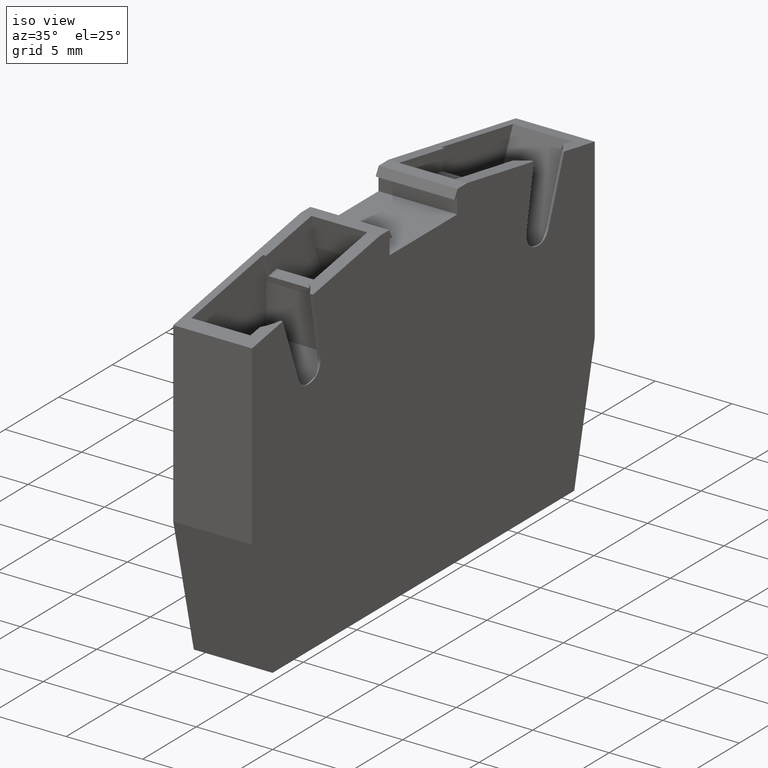
[diagram: clean part render]
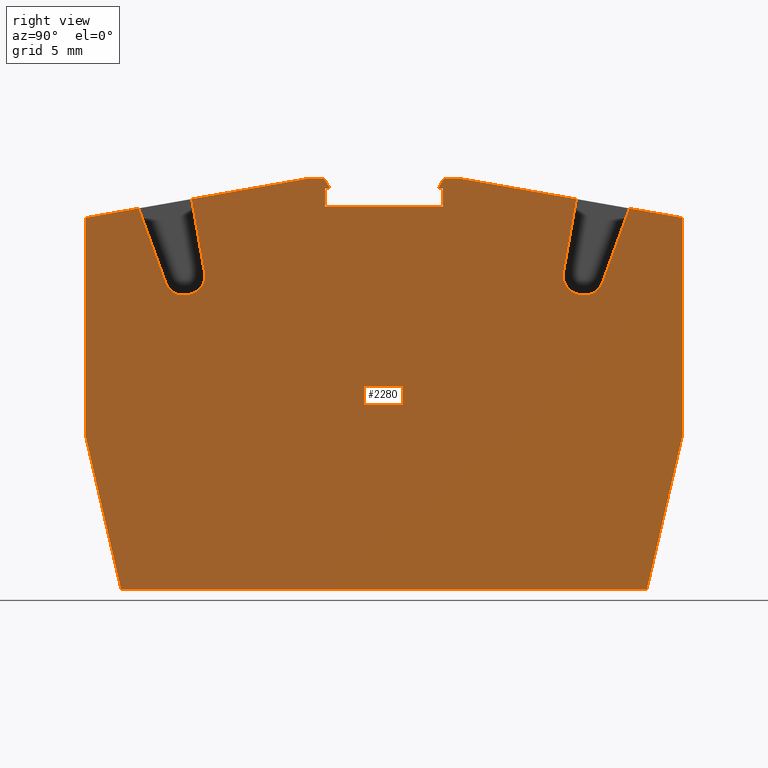
[diagram: tour spotlight — one face highlighted and labeled with its STEP entity id]
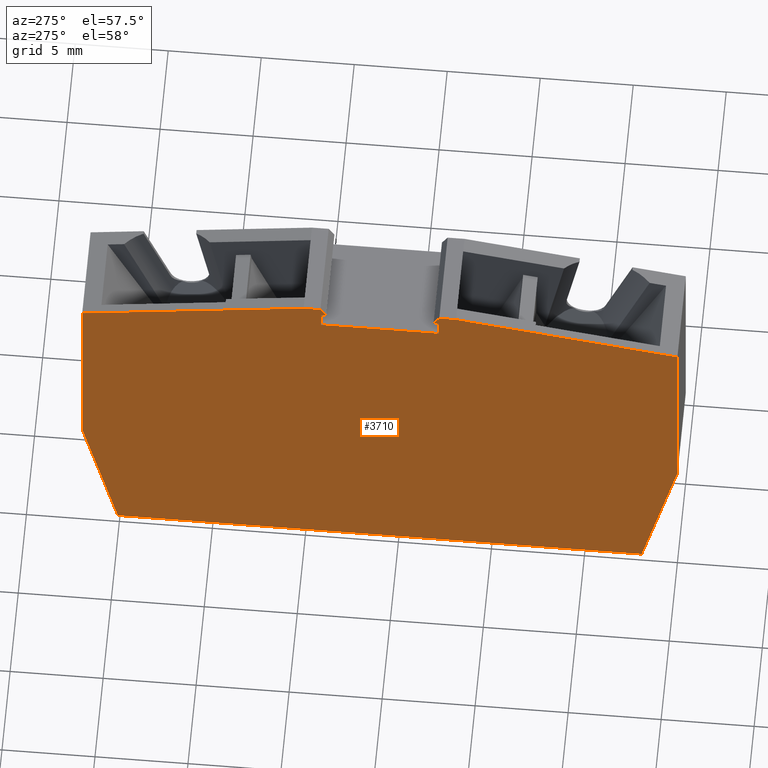
[diagram: tour spotlight — one face highlighted and labeled with its STEP entity id]
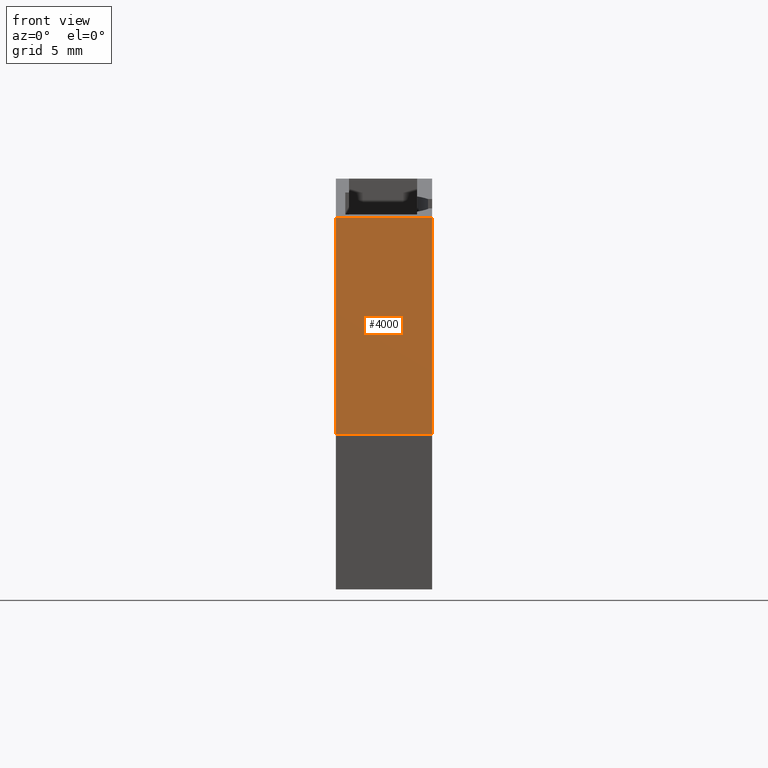
[diagram: tour spotlight — one face highlighted and labeled with its STEP entity id]
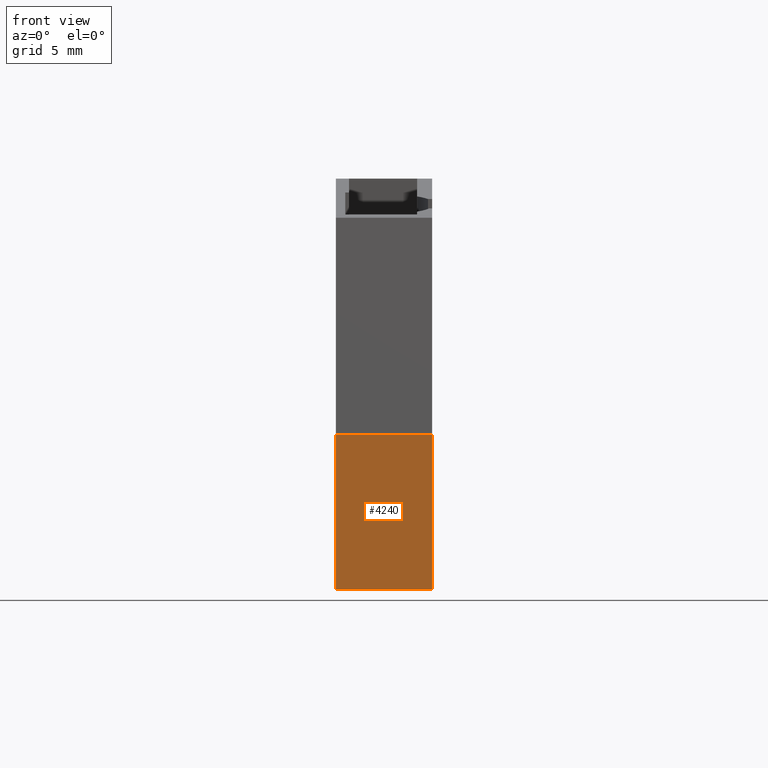
[diagram: tour spotlight — one face highlighted and labeled with its STEP entity id]
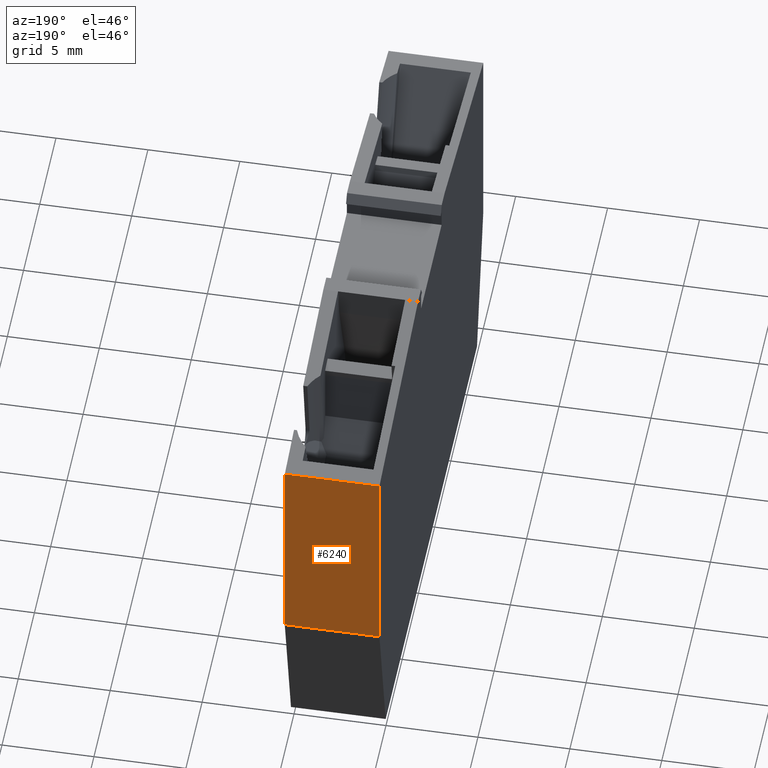
[diagram: tour spotlight — one face highlighted and labeled with its STEP entity id]
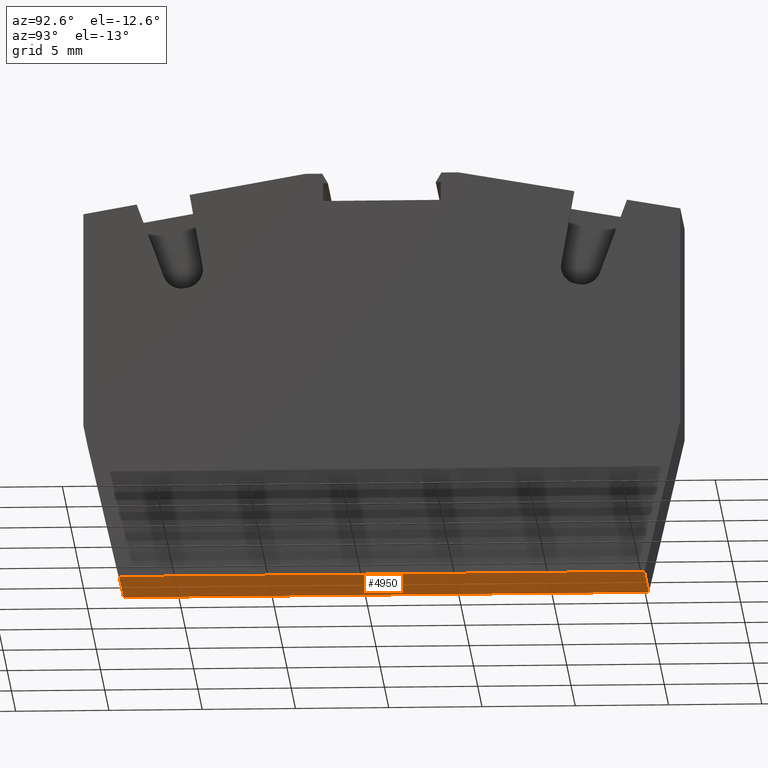
[diagram: tour spotlight — one face highlighted and labeled with its STEP entity id]
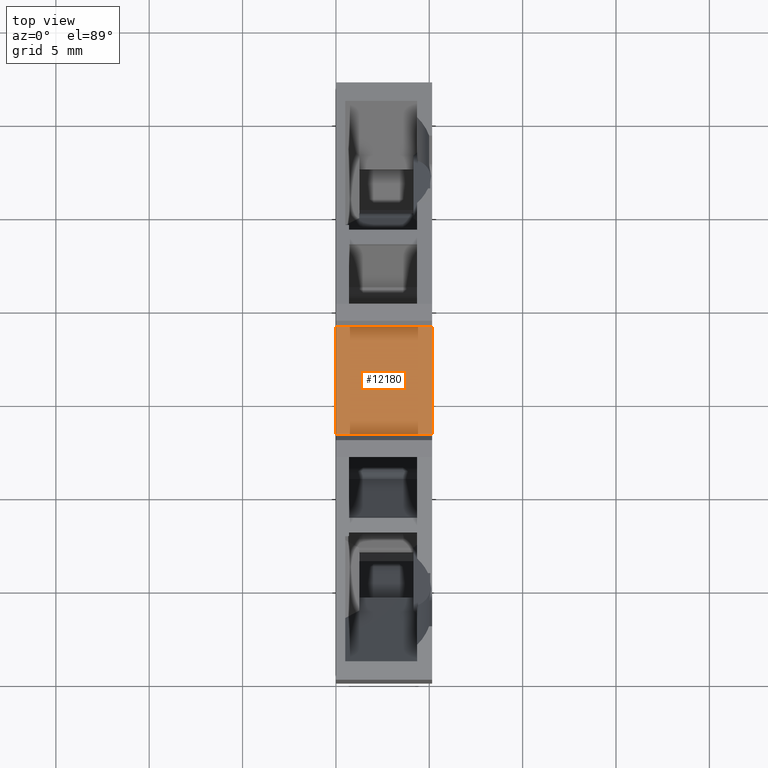
[diagram: tour spotlight — one face highlighted and labeled with its STEP entity id]
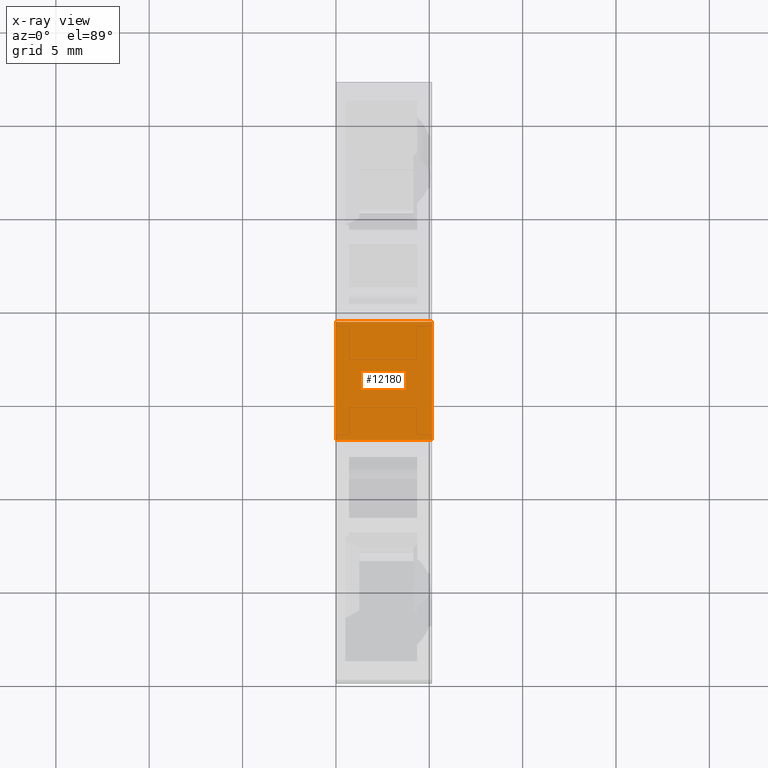
[diagram: x-ray of the same camera — body ghosted, this tour face saturated]
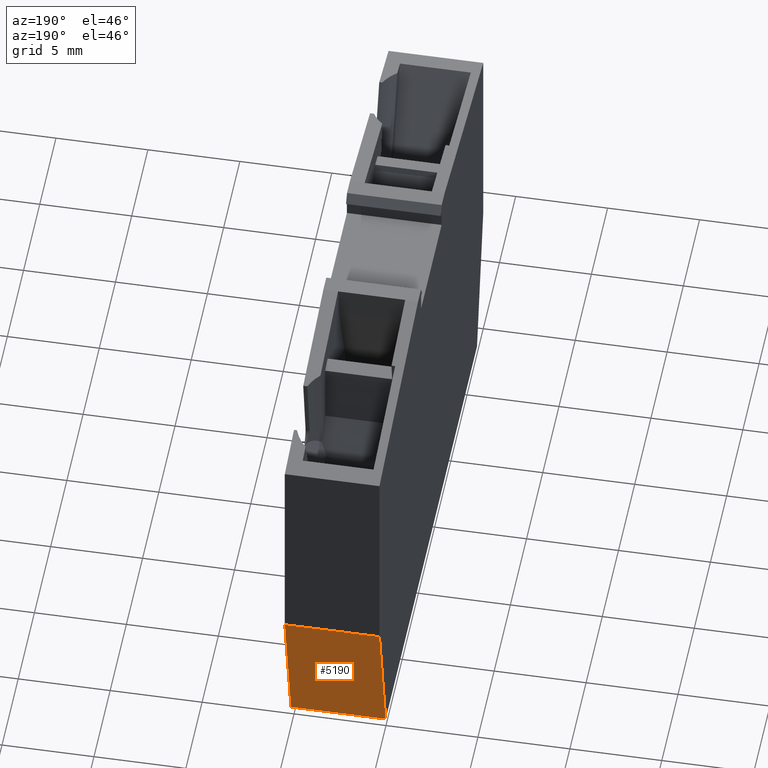
[diagram: tour spotlight — one face highlighted and labeled with its STEP entity id]
A machine part: a face-by-face anatomy tour. The part has 92 B-rep faces; the first image is the clean iso view, then the 8 largest visible faces are spotlighted one at a time (largest first), each with its STEP entity span.

Face 1 — right view, entity #2280. In plain terms, the highlighted planar face has unit normal (1, 0, -0).
Definition (entity closure, byte-faithful):
#10=CARTESIAN_POINT('',(8.03621504403304,131.836927118989,55.05));
#20=DIRECTION('',(0.,0.,-1.));
#30=DIRECTION('',(-1.,0.,0.));
#40=AXIS2_PLACEMENT_3D('',#10,#20,#30);
#50=PLANE('',#40);
#60=CARTESIAN_POINT('',(30.7687890493707,130.762530668222,
55.0499999999997));
#70=DIRECTION('',(0.999390827019096,0.0348994967024971,
-3.97549769558052E-15));
#80=VECTOR('',#70,1.);
#90=LINE('',#60,#80);
#100=CARTESIAN_POINT('',(0.0190285645131063,129.688725370403,55.05));
#110=VERTEX_POINT('',#100);
#120=CARTESIAN_POINT('',(8.53216352631757,129.986010594057,
55.0499999999999));
#130=VERTEX_POINT('',#120);
#140=EDGE_CURVE('',#110,#130,#90,.T.);
#150=ORIENTED_EDGE('',*,*,#140,.T.);
#160=CARTESIAN_POINT('',(30.7687890493707,137.928098859771,
55.0499999999997));
#170=DIRECTION('',(0.965925826289069,0.258819045102517,
-4.08006961549746E-15));
#180=VECTOR('',#170,1.);
#190=LINE('',#160,#180);
#200=CARTESIAN_POINT('',(-11.1873617196461,126.685982143695,
55.0500000000001));
#210=VERTEX_POINT('',#200);
#220=EDGE_CURVE('',#210,#110,#190,.T.);
#230=ORIENTED_EDGE('',*,*,#220,.T.);
#240=CARTESIAN_POINT('',(-6.72796270864261,75.7148182090404,55.05));
#250=DIRECTION('',(-0.0871557427476545,0.996194698091746,
-7.0849665348537E-16));
#260=VECTOR('',#250,1.);
#270=LINE('',#240,#260);
#280=CARTESIAN_POINT('',(-10.934440828583,123.795083130382,
55.0500000000001));
#290=VERTEX_POINT('',#280);
#300=EDGE_CURVE('',#290,#210,#270,.T.);
#310=ORIENTED_EDGE('',*,*,#300,.T.);
#320=CARTESIAN_POINT('',(30.7687890493707,120.146523283646,
55.0499999999998));
#330=DIRECTION('',(0.996194698091746,-0.0871557427476572,
-3.83401130997576E-15));
#340=VECTOR('',#330,1.);
#350=LINE('',#320,#340);
#360=CARTESIAN_POINT('',(-6.71253439702333,123.425714179154,55.05));
#370=VERTEX_POINT('',#360);
#380=EDGE_CURVE('',#290,#370,#350,.T.);
#390=ORIENTED_EDGE('',*,*,#380,.F.);
#400=CARTESIAN_POINT('',(-6.79969013977097,122.429519481062,
55.0499999999999));
#410=DIRECTION('',(1.26217744835362E-29,-1.57772181044202E-30,-1.));
#420=DIRECTION('',(-1.,-8.88178419700117E-16,-1.26217744835362E-29));
#430=AXIS2_PLACEMENT_3D('',#400,#410,#420);
#440=CIRCLE('',#430,1.);
#450=CARTESIAN_POINT('',(-5.80349544167923,122.51667522381,55.05));
#460=VERTEX_POINT('',#450);
#470=EDGE_CURVE('',#370,#460,#440,.T.);
#480=ORIENTED_EDGE('',*,*,#470,.F.);
#490=CARTESIAN_POINT('',(-1.70886352092564,75.7148182090403,
55.0499999999999));
#500=DIRECTION('',(0.0871557427476592,-0.996194698091745,
7.08496653485351E-16));
#510=VECTOR('',#500,1.);
#520=LINE('',#490,#510);
#530=CARTESIAN_POINT('',(-5.78947205052613,122.356387129467,55.05));
#540=VERTEX_POINT('',#530);
#550=EDGE_CURVE('',#460,#540,#520,.T.);
#560=ORIENTED_EDGE('',*,*,#550,.F.);
#570=CARTESIAN_POINT('',(-6.78566674861786,122.26923138672,
55.0499999999999));
#580=DIRECTION('',(1.26217744835362E-29,-1.57772181044202E-30,-1.));
#590=DIRECTION('',(-1.,-8.88178419700117E-16,-1.26217744835362E-29));
#600=AXIS2_PLACEMENT_3D('',#570,#580,#590);
#610=CIRCLE('',#600,1.);
#620=CARTESIAN_POINT('',(-6.69851100587022,121.273036688628,55.05));
#630=VERTEX_POINT('',#620);
#640=EDGE_CURVE('',#540,#630,#610,.T.);
#650=ORIENTED_EDGE('',*,*,#640,.F.);
#660=CARTESIAN_POINT('',(30.7687890493707,124.551000696386,
55.0499999999997));
#670=DIRECTION('',(0.996194698091746,0.0871557427476591,
-4.01808419017143E-15));
#680=VECTOR('',#670,1.);
#690=LINE('',#660,#680);
#700=CARTESIAN_POINT('',(-10.6832897982372,120.924413717637,55.05));
#710=VERTEX_POINT('',#700);
#720=EDGE_CURVE('',#710,#630,#690,.T.);
#730=ORIENTED_EDGE('',*,*,#720,.T.);
#740=CARTESIAN_POINT('',(-10.134208618927,114.64838711966,55.05));
#750=VERTEX_POINT('',#740);
#760=EDGE_CURVE('',#750,#710,#270,.T.);
#770=ORIENTED_EDGE('',*,*,#760,.T.);
#780=CARTESIAN_POINT('',(0.298009729134699,75.7148182090403,
55.0499999999999));
#790=DIRECTION('',(-0.258819045102517,0.965925826289069,
-2.44546880618514E-29));
#800=VECTOR('',#790,1.);
#810=LINE('',#780,#800);
#820=CARTESIAN_POINT('',(-9.90028486570806,113.775371787549,55.05));
#830=VERTEX_POINT('',#820);
#840=EDGE_CURVE('',#830,#750,#810,.T.);
#850=ORIENTED_EDGE('',*,*,#840,.T.);
#860=CARTESIAN_POINT('',(30.7687890493706,102.878126275403,
55.0499999999998));
#870=DIRECTION('',(0.965925826290971,-0.258819045095419,
-3.5334439362448E-15));
#880=VECTOR('',#870,1.);
#890=LINE('',#860,#880);
#900=CARTESIAN_POINT('',(-9.30914667773161,113.61697678747,55.05));
#910=VERTEX_POINT('',#900);
#920=EDGE_CURVE('',#830,#910,#890,.T.);
#930=ORIENTED_EDGE('',*,*,#920,.F.);
#940=CARTESIAN_POINT('',(0.846706104788934,75.7148182090403,
55.0499999999999));
#950=DIRECTION('',(-0.258819045103326,0.965925826288852,
3.39367961426079E-27));
#960=VECTOR('',#950,1.);
#970=LINE('',#940,#960);
#980=CARTESIAN_POINT('',(-9.3796250762075,113.880005751418,55.05));
#990=VERTEX_POINT('',#980);
#1000=EDGE_CURVE('',#910,#990,#970,.T.);
#1010=ORIENTED_EDGE('',*,*,#1000,.F.);
#1020=CARTESIAN_POINT('',(30.7687890493707,124.637740893771,
55.0499999999997));
#1030=DIRECTION('',(0.96592582628898,0.25881904510285,
-4.08006961549746E-15));
#1040=VECTOR('',#1030,1.);
#1050=LINE('',#1020,#1040);
#1060=CARTESIAN_POINT('',(-8.44267702470802,114.131060225167,55.05));
#1070=VERTEX_POINT('',#1060);
#1080=EDGE_CURVE('',#990,#1070,#1050,.T.);
#1090=ORIENTED_EDGE('',*,*,#1080,.F.);
#1100=CARTESIAN_POINT('',(22.1386483939725,-2.33276856728253E-12,
55.0499999999995));
#1110=DIRECTION('',(0.258819045102825,-0.965925826288987,
-4.08006961550003E-15));
#1120=VECTOR('',#1110,1.);
#1130=LINE('',#1100,#1120);
#1140=CARTESIAN_POINT('',(-6.80564656443251,108.021579373889,55.05));
#1150=VERTEX_POINT('',#1140);
#1160=EDGE_CURVE('',#1070,#1150,#1130,.T.);
#1170=ORIENTED_EDGE('',*,*,#1160,.F.);
#1180=CARTESIAN_POINT('',(30.7687890493706,118.089619052631,
55.0499999999998));
#1190=DIRECTION('',(-0.965925826289268,-0.258819045101776,
4.08006961549746E-15));
#1200=VECTOR('',#1190,1.);
#1210=LINE('',#1180,#1200);
#1220=CARTESIAN_POINT('',(-7.74259461593548,107.770524900139,55.05));
#1230=VERTEX_POINT('',#1220);
#1240=EDGE_CURVE('',#1150,#1230,#1210,.T.);
#1250=ORIENTED_EDGE('',*,*,#1240,.F.);
#1260=CARTESIAN_POINT('',(0.84670610471001,75.7148182090403,
55.0499999999999));
#1270=DIRECTION('',(-0.2588190451013,0.965925826289396,
-5.16782779010285E-27));
#1280=VECTOR('',#1270,1.);
#1290=LINE('',#1260,#1280);
#1300=CARTESIAN_POINT('',(-7.81307301441082,108.033553864087,55.05));
#1310=VERTEX_POINT('',#1300);
#1320=EDGE_CURVE('',#1230,#1310,#1290,.T.);
#1330=ORIENTED_EDGE('',*,*,#1320,.F.);
#1340=CARTESIAN_POINT('',(30.7687890493707,146.615415927268,
55.0499999999997));
#1350=DIRECTION('',(-0.70710678119205,-0.707106781181045,
3.53344393624568E-15));
#1360=VECTOR('',#1350,1.);
#1370=LINE('',#1340,#1360);
#1380=CARTESIAN_POINT('',(-8.24581620230524,107.600810676199,55.05));
#1390=VERTEX_POINT('',#1380);
#1400=EDGE_CURVE('',#1310,#1390,#1370,.T.);
#1410=ORIENTED_EDGE('',*,*,#1400,.F.);
#1420=CARTESIAN_POINT('',(0.298009729134681,75.7148182090403,
55.0499999999999));
#1430=DIRECTION('',(0.258819045102517,-0.965925826289069,
2.44546880618514E-29));
#1440=VECTOR('',#1430,1.);
#1450=LINE('',#1420,#1440);
#1460=CARTESIAN_POINT('',(-8.01189244908626,106.727795344089,55.05));
#1470=VERTEX_POINT('',#1460);
#1480=EDGE_CURVE('',#1390,#1470,#1450,.T.);
#1490=ORIENTED_EDGE('',*,*,#1480,.F.);
#1500=CARTESIAN_POINT('',(6.44969629117246,75.7148182090403,
55.0499999999999));
#1510=DIRECTION('',(0.422618261740696,-0.906307787036652,
-7.08496653485321E-16));
#1520=VECTOR('',#1510,1.);
#1530=LINE('',#1500,#1520);
#1540=CARTESIAN_POINT('',(-5.3493974001175,101.018056285753,55.05));
#1550=VERTEX_POINT('',#1540);
#1560=EDGE_CURVE('',#1470,#1550,#1530,.T.);
#1570=ORIENTED_EDGE('',*,*,#1560,.F.);
#1580=CARTESIAN_POINT('',(30.7687890493706,117.860243225818,
55.0499999999998));
#1590=DIRECTION('',(0.906307787036657,0.422618261740684,
-4.01808419017145E-15));
#1600=VECTOR('',#1590,1.);
#1610=LINE('',#1580,#1600);
#1620=CARTESIAN_POINT('',(-1.72416625197179,102.708529332715,
55.0499999999999));
#1630=VERTEX_POINT('',#1620);
#1640=EDGE_CURVE('',#1550,#1630,#1610,.T.);
#1650=ORIENTED_EDGE('',*,*,#1640,.F.);
#1660=CARTESIAN_POINT('',(-1.3015479902311,101.802221545678,
55.0499999999999));
#1670=DIRECTION('',(-2.83989925879564E-29,6.9419759659449E-29,1.));
#1680=DIRECTION('',(-0.866025403784447,-0.499999999999986,
7.88860905221012E-30));
#1690=AXIS2_PLACEMENT_3D('',#1660,#1670,#1680);
#1700=CIRCLE('',#1690,1.);
#1710=CARTESIAN_POINT('',(-0.395240203194459,102.224839807419,
55.0499999999999));
#1720=VERTEX_POINT('',#1710);
#1730=EDGE_CURVE('',#1720,#1630,#1700,.T.);
#1740=ORIENTED_EDGE('',*,*,#1730,.T.);
#1750=CARTESIAN_POINT('',(11.9665858859833,75.7148182090403,
55.0499999999999));
#1760=DIRECTION('',(-0.422618261740684,0.906307787036657,
7.08496653485271E-16));
#1770=VECTOR('',#1760,1.);
#1780=LINE('',#1750,#1770);
#1790=CARTESIAN_POINT('',(-0.327240769009165,102.079014550218,
55.0499999999999));
#1800=VERTEX_POINT('',#1790);
#1810=EDGE_CURVE('',#1800,#1720,#1780,.T.);
#1820=ORIENTED_EDGE('',*,*,#1810,.T.);
#1830=CARTESIAN_POINT('',(-1.23354855604579,101.656396288477,
55.0499999999999));
#1840=DIRECTION('',(-2.83989925879564E-29,6.9419759659449E-29,1.));
#1850=DIRECTION('',(-0.866025403784447,-0.499999999999986,
7.88860905221012E-30));
#1860=AXIS2_PLACEMENT_3D('',#1830,#1840,#1850);
#1870=CIRCLE('',#1860,1.);
#1880=CARTESIAN_POINT('',(-0.659972119694764,100.837244244188,
55.0499999999999));
#1890=VERTEX_POINT('',#1880);
#1900=EDGE_CURVE('',#1890,#1800,#1870,.T.);
#1910=ORIENTED_EDGE('',*,*,#1900,.T.);
#1920=CARTESIAN_POINT('',(30.7687890493707,122.843899731359,
55.0499999999998));
#1930=DIRECTION('',(0.819152044289001,0.573576436351033,
-3.83401130997579E-15));
#1940=VECTOR('',#1930,1.);
#1950=LINE('',#1920,#1940);
#1960=CARTESIAN_POINT('',(-4.13156586621116,98.4064081332756,55.05));
#1970=VERTEX_POINT('',#1960);
#1980=EDGE_CURVE('',#1970,#1890,#1950,.T.);
#1990=ORIENTED_EDGE('',*,*,#1980,.T.);
#2000=CARTESIAN_POINT('',(-2.90515227636565,95.7763557024449,
55.0499999999999));
#2010=VERTEX_POINT('',#2000);
#2020=EDGE_CURVE('',#1970,#2010,#1530,.T.);
#2030=ORIENTED_EDGE('',*,*,#2020,.F.);
#2040=CARTESIAN_POINT('',(30.7687890493706,104.799261086649,
55.0499999999998));
#2050=DIRECTION('',(0.965925826289069,0.258819045102517,
-4.08006961549746E-15));
#2060=VECTOR('',#2050,1.);
#2070=LINE('',#2040,#2060);
#2080=CARTESIAN_POINT('',(8.30123800779428,98.7790989291535,
55.0499999999998));
#2090=VERTEX_POINT('',#2080);
#2100=EDGE_CURVE('',#2010,#2090,#2070,.T.);
#2110=ORIENTED_EDGE('',*,*,#2100,.F.);
#2120=CARTESIAN_POINT('',(30.7687890493706,110.725307724295,
55.0499999999998));
#2130=DIRECTION('',(-0.882947592858929,-0.469471562785888,
3.97549769558053E-15));
#2140=VECTOR('',#2130,1.);
#2150=LINE('',#2120,#2140);
#2160=CARTESIAN_POINT('',(15.8224717623885,102.778209854202,
55.0499999999998));
#2170=VERTEX_POINT('',#2160);
#2180=EDGE_CURVE('',#2170,#2090,#2150,.T.);
#2190=ORIENTED_EDGE('',*,*,#2180,.T.);
#2200=CARTESIAN_POINT('',(7.93268530467233,132.223293775268,
55.0499999999998));
#2210=DIRECTION('',(0.258819045102518,-0.965925826289069,
2.20881053461883E-29));
#2220=VECTOR('',#2210,1.);
#2230=LINE('',#2200,#2220);
#2240=EDGE_CURVE('',#130,#2170,#2230,.T.);
#2250=ORIENTED_EDGE('',*,*,#2240,.T.);
#2260=EDGE_LOOP('',(#2250,#2190,#2110,#2030,#1990,#1910,#1820,#1740,
#1650,#1570,#1490,#1410,#1330,#1250,#1170,#1090,#1010,#930,#850,#770,
#730,#650,#560,#480,#390,#310,#230,#150));
#2270=FACE_OUTER_BOUND('',#2260,.T.);
#2280=ADVANCED_FACE('',(#2270),#50,.T.);

Face 2 — auxiliary view, entity #3710. In plain terms, the highlighted planar face has unit normal (-1, -0, 0).
Definition (entity closure, byte-faithful):
#2360=CARTESIAN_POINT('',(8.03621504403304,131.836927118989,60.2));
#2370=DIRECTION('',(0.,0.,1.));
#2380=DIRECTION('',(1.,0.,0.));
#2390=AXIS2_PLACEMENT_3D('',#2360,#2370,#2380);
#2400=PLANE('',#2390);
#2410=CARTESIAN_POINT('',(30.7687890493706,110.725307724295,
60.1999999999998));
#2420=DIRECTION('',(-0.882947592858929,-0.469471562785888,
3.97549769558053E-15));
#2430=VECTOR('',#2420,1.);
#2440=LINE('',#2410,#2430);
#2450=CARTESIAN_POINT('',(15.8224717623885,102.778209854202,
60.1999999999999));
#2460=VERTEX_POINT('',#2450);
#2470=CARTESIAN_POINT('',(8.30123800779413,98.7790989291534,60.2));
#2480=VERTEX_POINT('',#2470);
#2490=EDGE_CURVE('',#2460,#2480,#2440,.T.);
#2500=ORIENTED_EDGE('',*,*,#2490,.F.);
#2510=CARTESIAN_POINT('',(30.7687890493706,104.799261086649,
60.1999999999998));
#2520=DIRECTION('',(-0.965925826289069,-0.258819045102517,
4.08006961549746E-15));
#2530=VECTOR('',#2520,1.);
#2540=LINE('',#2510,#2530);
#2550=CARTESIAN_POINT('',(-2.90515227636562,95.7763557024449,
60.2000000000001));
#2560=VERTEX_POINT('',#2550);
#2570=EDGE_CURVE('',#2480,#2560,#2540,.T.);
#2580=ORIENTED_EDGE('',*,*,#2570,.F.);
#2590=CARTESIAN_POINT('',(6.44969629117248,75.7148182090403,
60.1999999999999));
#2600=DIRECTION('',(-0.422618261740696,0.906307787036652,
7.08496653485321E-16));
#2610=VECTOR('',#2600,1.);
#2620=LINE('',#2590,#2610);
#2630=CARTESIAN_POINT('',(-8.01189244908618,106.727795344088,60.2));
#2640=VERTEX_POINT('',#2630);
#2650=EDGE_CURVE('',#2560,#2640,#2620,.T.);
#2660=ORIENTED_EDGE('',*,*,#2650,.F.);
#2670=CARTESIAN_POINT('',(20.5857341233166,-2.32318015491964E-12,
60.1999999999995));
#2680=DIRECTION('',(-0.258819045102517,0.965925826289069,
4.08006961549743E-15));
#2690=VECTOR('',#2680,1.);
#2700=LINE('',#2670,#2690);
#2710=CARTESIAN_POINT('',(-8.24581620230523,107.600810676199,
60.2000000000002));
#2720=VERTEX_POINT('',#2710);
#2730=EDGE_CURVE('',#2640,#2720,#2700,.T.);
#2740=ORIENTED_EDGE('',*,*,#2730,.F.);
#2750=CARTESIAN_POINT('',(7.5524263857874E-13,115.846626878377,
60.1999999999999));
#2760=DIRECTION('',(-0.70710678119205,-0.707106781181045,
5.0268530647701E-15));
#2770=VECTOR('',#2760,1.);
#2780=LINE('',#2750,#2770);
#2790=CARTESIAN_POINT('',(-7.8130730144107,108.033553864087,
60.2000000000002));
#2800=VERTEX_POINT('',#2790);
#2810=EDGE_CURVE('',#2800,#2720,#2780,.T.);
#2820=ORIENTED_EDGE('',*,*,#2810,.T.);
#2830=CARTESIAN_POINT('',(21.1344304987898,-2.32989631314874E-12,
60.1999999999995));
#2840=DIRECTION('',(-0.2588190451013,0.965925826289396,
4.08006961548714E-15));
#2850=VECTOR('',#2840,1.);
#2860=LINE('',#2830,#2850);
#2870=CARTESIAN_POINT('',(-7.74259461593535,107.770524900139,60.2));
#2880=VERTEX_POINT('',#2870);
#2890=EDGE_CURVE('',#2880,#2800,#2860,.T.);
#2900=ORIENTED_EDGE('',*,*,#2890,.T.);
#2910=CARTESIAN_POINT('',(6.81783269946848E-13,109.845146874795,
60.1999999999999));
#2920=DIRECTION('',(0.965925826289268,0.258819045101776,
-8.16013923099802E-15));
#2930=VECTOR('',#2920,1.);
#2940=LINE('',#2910,#2930);
#2950=CARTESIAN_POINT('',(-6.80564656443238,108.021579373889,
60.2000000000001));
#2960=VERTEX_POINT('',#2950);
#2970=EDGE_CURVE('',#2880,#2960,#2940,.T.);
#2980=ORIENTED_EDGE('',*,*,#2970,.F.);
#2990=CARTESIAN_POINT('',(22.1386483939727,-2.34218814991317E-12,
60.1999999999995));
#3000=DIRECTION('',(0.258819045102825,-0.965925826288987,
-4.08006961550003E-15));
#3010=VECTOR('',#3000,1.);
#3020=LINE('',#2990,#3010);
#3030=CARTESIAN_POINT('',(-8.44267702470787,114.131060225167,
60.2000000000002));
#3040=VERTEX_POINT('',#3030);
#3050=EDGE_CURVE('',#3040,#2960,#3020,.T.);
#3060=ORIENTED_EDGE('',*,*,#3050,.T.);
#3070=CARTESIAN_POINT('',(7.61933648834227E-13,116.393268715898,
60.1999999999999));
#3080=DIRECTION('',(-0.96592582628898,-0.25881904510285,
8.16013923099348E-15));
#3090=VECTOR('',#3080,1.);
#3100=LINE('',#3070,#3090);
#3110=CARTESIAN_POINT('',(-9.37962507620736,113.880005751418,
60.2000000000002));
#3120=VERTEX_POINT('',#3110);
#3130=EDGE_CURVE('',#3040,#3120,#3100,.T.);
#3140=ORIENTED_EDGE('',*,*,#3130,.F.);
#3150=CARTESIAN_POINT('',(21.134430499039,-2.32989631315179E-12,
60.1999999999995));
#3160=DIRECTION('',(0.258819045103326,-0.965925826288853,
-4.08006961550426E-15));
#3170=VECTOR('',#3160,1.);
#3180=LINE('',#3150,#3170);
#3190=CARTESIAN_POINT('',(-9.30914667773147,113.61697678747,60.2));
#3200=VERTEX_POINT('',#3190);
#3210=EDGE_CURVE('',#3120,#3200,#3180,.T.);
#3220=ORIENTED_EDGE('',*,*,#3210,.F.);
#3230=CARTESIAN_POINT('',(6.97419544055638E-13,111.122598453022,
60.1999999999999));
#3240=DIRECTION('',(-0.965925826290971,0.258819045095419,
9.10692268021232E-15));
#3250=VECTOR('',#3240,1.);
#3260=LINE('',#3230,#3250);
#3270=CARTESIAN_POINT('',(-9.90028486570808,113.775371787549,
60.2000000000002));
#3280=VERTEX_POINT('',#3270);
#3290=EDGE_CURVE('',#3200,#3280,#3260,.T.);
#3300=ORIENTED_EDGE('',*,*,#3290,.F.);
#3310=CARTESIAN_POINT('',(20.5857341233167,-2.32318015491964E-12,
60.1999999999995));
#3320=DIRECTION('',(0.258819045102517,-0.965925826289069,
-4.08006961549743E-15));
#3330=VECTOR('',#3320,1.);
#3340=LINE('',#3310,#3330);
#3350=CARTESIAN_POINT('',(-10.134208618927,114.64838711966,
60.2000000000002));
#3360=VERTEX_POINT('',#3350);
#3370=EDGE_CURVE('',#3360,#3280,#3340,.T.);
#3380=ORIENTED_EDGE('',*,*,#3370,.T.);
#3390=CARTESIAN_POINT('',(-6.72796270864259,75.7148182090404,60.2));
#3400=DIRECTION('',(0.0871557427476545,-0.996194698091746,
7.0849665348537E-16));
#3410=VECTOR('',#3400,1.);
#3420=LINE('',#3390,#3410);
#3430=CARTESIAN_POINT('',(-11.1873617196461,126.685982143695,
60.2000000000002));
#3440=VERTEX_POINT('',#3430);
#3450=EDGE_CURVE('',#3440,#3360,#3420,.T.);
#3460=ORIENTED_EDGE('',*,*,#3450,.T.);
#3470=CARTESIAN_POINT('',(30.7687890493707,137.928098859771,
60.1999999999997));
#3480=DIRECTION('',(-0.965925826289069,-0.258819045102517,
4.08006961549746E-15));
#3490=VECTOR('',#3480,1.);
#3500=LINE('',#3470,#3490);
#3510=CARTESIAN_POINT('',(0.0190285645131266,129.688725370403,
60.1999999999999));
#3520=VERTEX_POINT('',#3510);
#3530=EDGE_CURVE('',#3520,#3440,#3500,.T.);
#3540=ORIENTED_EDGE('',*,*,#3530,.T.);
#3550=CARTESIAN_POINT('',(30.7687890493707,130.762530668222,
60.1999999999997));
#3560=DIRECTION('',(-0.999390827019096,-0.0348994967024971,
3.97549769558052E-15));
#3570=VECTOR('',#3560,1.);
#3580=LINE('',#3550,#3570);
#3590=CARTESIAN_POINT('',(8.53216352631759,129.986010594057,
60.1999999999998));
#3600=VERTEX_POINT('',#3590);
#3610=EDGE_CURVE('',#3600,#3520,#3580,.T.);
#3620=ORIENTED_EDGE('',*,*,#3610,.T.);
#3630=CARTESIAN_POINT('',(43.361810092338,1.4073087854995E-13,
60.1999999999998));
#3640=DIRECTION('',(0.258819045102518,-0.965925826289069,
2.20881053461883E-29));
#3650=VECTOR('',#3640,1.);
#3660=LINE('',#3630,#3650);
#3670=EDGE_CURVE('',#3600,#2460,#3660,.T.);
#3680=ORIENTED_EDGE('',*,*,#3670,.F.);
#3690=EDGE_LOOP('',(#3680,#3620,#3540,#3460,#3380,#3300,#3220,#3140,
#3060,#2980,#2900,#2820,#2740,#2660,#2580,#2500));
#3700=FACE_OUTER_BOUND('',#3690,.T.);
#3710=ADVANCED_FACE('',(#3700),#2400,.T.);

Face 3 — front view, entity #4000. In plain terms, the highlighted planar face has unit normal (0, -1, 0).
Definition (entity closure, byte-faithful):
#100=CARTESIAN_POINT('',(0.0190285645131063,129.688725370403,55.05));
#110=VERTEX_POINT('',#100);
#160=CARTESIAN_POINT('',(30.7687890493707,137.928098859771,
55.0499999999997));
#170=DIRECTION('',(0.965925826289069,0.258819045102517,
-4.08006961549746E-15));
#180=VECTOR('',#170,1.);
#190=LINE('',#160,#180);
#200=CARTESIAN_POINT('',(-11.1873617196461,126.685982143695,
55.0500000000001));
#210=VERTEX_POINT('',#200);
#220=EDGE_CURVE('',#210,#110,#190,.T.);
#3430=CARTESIAN_POINT('',(-11.1873617196461,126.685982143695,
60.2000000000002));
#3440=VERTEX_POINT('',#3430);
#3470=CARTESIAN_POINT('',(30.7687890493707,137.928098859771,
60.1999999999997));
#3480=DIRECTION('',(-0.965925826289069,-0.258819045102517,
4.08006961549746E-15));
#3490=VECTOR('',#3480,1.);
#3500=LINE('',#3470,#3490);
#3510=CARTESIAN_POINT('',(0.0190285645131266,129.688725370403,
60.1999999999999));
#3520=VERTEX_POINT('',#3510);
#3530=EDGE_CURVE('',#3520,#3440,#3500,.T.);
#3790=CARTESIAN_POINT('',(-1.4140818967924,129.304724579632,
60.7150023999999));
#3800=DIRECTION('',(-0.258819045102517,0.965925826289069,
-2.30741814777146E-29));
#3810=DIRECTION('',(-0.965925826289069,-0.258819045102517,
4.08006961549746E-15));
#3820=AXIS2_PLACEMENT_3D('',#3790,#3800,#3810);
#3830=PLANE('',#3820);
#3840=CARTESIAN_POINT('',(-11.1873617196463,126.685982143695,
1.19999999999992));
#3850=DIRECTION('',(3.9410446146663E-15,1.05599972183487E-15,1.));
#3860=VECTOR('',#3850,1.);
#3870=LINE('',#3840,#3860);
#3880=EDGE_CURVE('',#210,#3440,#3870,.T.);
#3890=ORIENTED_EDGE('',*,*,#3880,.T.);
#3900=ORIENTED_EDGE('',*,*,#220,.F.);
#3910=CARTESIAN_POINT('',(0.0190285645131561,129.688725370403,
1.19999999999988));
#3920=DIRECTION('',(3.9410446146663E-15,1.05599972183487E-15,1.));
#3930=VECTOR('',#3920,1.);
#3940=LINE('',#3910,#3930);
#3950=EDGE_CURVE('',#110,#3520,#3940,.T.);
#3960=ORIENTED_EDGE('',*,*,#3950,.F.);
#3970=ORIENTED_EDGE('',*,*,#3530,.F.);
#3980=EDGE_LOOP('',(#3970,#3960,#3900,#3890));
#3990=FACE_OUTER_BOUND('',#3980,.T.);
#4000=ADVANCED_FACE('',(#3990),#3830,.T.);

Face 4 — front view, entity #4240. In plain terms, the highlighted planar face has unit normal (-0, 0.9744, 0.225).
Definition (entity closure, byte-faithful):
#60=CARTESIAN_POINT('',(30.7687890493707,130.762530668222,
55.0499999999997));
#70=DIRECTION('',(0.999390827019096,0.0348994967024971,
-3.97549769558052E-15));
#80=VECTOR('',#70,1.);
#90=LINE('',#60,#80);
#100=CARTESIAN_POINT('',(0.0190285645131063,129.688725370403,55.05));
#110=VERTEX_POINT('',#100);
#120=CARTESIAN_POINT('',(8.53216352631757,129.986010594057,
55.0499999999999));
#130=VERTEX_POINT('',#120);
#140=EDGE_CURVE('',#110,#130,#90,.T.);
#3510=CARTESIAN_POINT('',(0.0190285645131266,129.688725370403,
60.1999999999999));
#3520=VERTEX_POINT('',#3510);
#3550=CARTESIAN_POINT('',(30.7687890493707,130.762530668222,
60.1999999999997));
#3560=DIRECTION('',(-0.999390827019096,-0.0348994967024971,
3.97549769558052E-15));
#3570=VECTOR('',#3560,1.);
#3580=LINE('',#3550,#3570);
#3590=CARTESIAN_POINT('',(8.53216352631759,129.986010594057,
60.1999999999998));
#3600=VERTEX_POINT('',#3590);
#3610=EDGE_CURVE('',#3600,#3520,#3580,.T.);
#3910=CARTESIAN_POINT('',(0.0190285645131561,129.688725370403,
1.19999999999988));
#3920=DIRECTION('',(3.9410446146663E-15,1.05599972183487E-15,1.));
#3930=VECTOR('',#3920,1.);
#3940=LINE('',#3910,#3930);
#3950=EDGE_CURVE('',#110,#3520,#3940,.T.);
#4080=CARTESIAN_POINT('',(8.53216352631747,129.986010594057,
55.0499999999998));
#4090=DIRECTION('',(0.0348994967024971,-0.999390827019096,
9.17815961802544E-16));
#4100=DIRECTION('',(0.999390827019096,0.0348994967024971,
-3.97549769558052E-15));
#4110=AXIS2_PLACEMENT_3D('',#4080,#4090,#4100);
#4120=PLANE('',#4110);
#4130=CARTESIAN_POINT('',(8.53216352631736,129.986010594057,
-1.53148156748736E-13));
#4140=DIRECTION('',(3.9410446146663E-15,1.05599972183487E-15,1.));
#4150=VECTOR('',#4140,1.);
#4160=LINE('',#4130,#4150);
#4170=EDGE_CURVE('',#130,#3600,#4160,.T.);
#4180=ORIENTED_EDGE('',*,*,#4170,.F.);
#4190=ORIENTED_EDGE('',*,*,#3610,.F.);
#4200=ORIENTED_EDGE('',*,*,#3950,.T.);
#4210=ORIENTED_EDGE('',*,*,#140,.F.);
#4220=EDGE_LOOP('',(#4210,#4200,#4190,#4180));
#4230=FACE_OUTER_BOUND('',#4220,.T.);
#4240=ADVANCED_FACE('',(#4230),#4120,.F.);

Face 5 — auxiliary view, entity #6240. In plain terms, the highlighted planar face has unit normal (0, -1, 0).
Definition (entity closure, byte-faithful):
#2000=CARTESIAN_POINT('',(-2.90515227636565,95.7763557024449,
55.0499999999999));
#2010=VERTEX_POINT('',#2000);
#2040=CARTESIAN_POINT('',(30.7687890493706,104.799261086649,
55.0499999999998));
#2050=DIRECTION('',(0.965925826289069,0.258819045102517,
-4.08006961549746E-15));
#2060=VECTOR('',#2050,1.);
#2070=LINE('',#2040,#2060);
#2080=CARTESIAN_POINT('',(8.30123800779428,98.7790989291535,
55.0499999999998));
#2090=VERTEX_POINT('',#2080);
#2100=EDGE_CURVE('',#2010,#2090,#2070,.T.);
#2470=CARTESIAN_POINT('',(8.30123800779413,98.7790989291534,60.2));
#2480=VERTEX_POINT('',#2470);
#2510=CARTESIAN_POINT('',(30.7687890493706,104.799261086649,
60.1999999999998));
#2520=DIRECTION('',(-0.965925826289069,-0.258819045102517,
4.08006961549746E-15));
#2530=VECTOR('',#2520,1.);
#2540=LINE('',#2510,#2530);
#2550=CARTESIAN_POINT('',(-2.90515227636562,95.7763557024449,
60.2000000000001));
#2560=VERTEX_POINT('',#2550);
#2570=EDGE_CURVE('',#2480,#2560,#2540,.T.);
#5100=CARTESIAN_POINT('',(8.30123800779367,98.7790989291532,
1.19999999999988));
#5110=DIRECTION('',(-3.9410446146663E-15,-1.05599972183487E-15,-1.));
#5120=VECTOR('',#5110,1.);
#5130=LINE('',#5100,#5120);
#5140=EDGE_CURVE('',#2480,#2090,#5130,.T.);
#5320=CARTESIAN_POINT('',(-2.90515227636584,95.7763557024448,
1.19999999999992));
#5330=DIRECTION('',(3.9410446146663E-15,1.05599972183487E-15,1.));
#5340=VECTOR('',#5330,1.);
#5350=LINE('',#5320,#5340);
#5360=EDGE_CURVE('',#2010,#2560,#5350,.T.);
#6130=CARTESIAN_POINT('',(6.86812754648811,98.3950981383819,
60.7150023999999));
#6140=DIRECTION('',(-0.258819045102517,0.965925826289069,
-2.30741814777146E-29));
#6150=DIRECTION('',(-0.96592582628907,-0.258819045102517,
4.08006961549746E-15));
#6160=AXIS2_PLACEMENT_3D('',#6130,#6140,#6150);
#6170=PLANE('',#6160);
#6180=ORIENTED_EDGE('',*,*,#2570,.T.);
#6190=ORIENTED_EDGE('',*,*,#5140,.F.);
#6200=ORIENTED_EDGE('',*,*,#2100,.T.);
#6210=ORIENTED_EDGE('',*,*,#5360,.F.);
#6220=EDGE_LOOP('',(#6210,#6200,#6190,#6180));
#6230=FACE_OUTER_BOUND('',#6220,.T.);
#6240=ADVANCED_FACE('',(#6230),#6170,.F.);

Face 6 — auxiliary view, entity #4950. In plain terms, the highlighted planar face has unit normal (-0, -0, -1).
Definition (entity closure, byte-faithful):
#120=CARTESIAN_POINT('',(8.53216352631757,129.986010594057,
55.0499999999999));
#130=VERTEX_POINT('',#120);
#2160=CARTESIAN_POINT('',(15.8224717623885,102.778209854202,
55.0499999999998));
#2170=VERTEX_POINT('',#2160);
#2200=CARTESIAN_POINT('',(7.93268530467233,132.223293775268,
55.0499999999998));
#2210=DIRECTION('',(0.258819045102518,-0.965925826289069,
2.20881053461883E-29));
#2220=VECTOR('',#2210,1.);
#2230=LINE('',#2200,#2220);
#2240=EDGE_CURVE('',#130,#2170,#2230,.T.);
#2450=CARTESIAN_POINT('',(15.8224717623885,102.778209854202,
60.1999999999999));
#2460=VERTEX_POINT('',#2450);
#3590=CARTESIAN_POINT('',(8.53216352631759,129.986010594057,
60.1999999999998));
#3600=VERTEX_POINT('',#3590);
#3630=CARTESIAN_POINT('',(43.361810092338,1.4073087854995E-13,
60.1999999999998));
#3640=DIRECTION('',(0.258819045102518,-0.965925826289069,
2.20881053461883E-29));
#3650=VECTOR('',#3640,1.);
#3660=LINE('',#3630,#3650);
#3670=EDGE_CURVE('',#3600,#2460,#3660,.T.);
#4130=CARTESIAN_POINT('',(8.53216352631736,129.986010594057,
-1.53148156748736E-13));
#4140=DIRECTION('',(3.9410446146663E-15,1.05599972183487E-15,1.));
#4150=VECTOR('',#4140,1.);
#4160=LINE('',#4130,#4150);
#4170=EDGE_CURVE('',#130,#3600,#4160,.T.);
#4790=CARTESIAN_POINT('',(8.03621292271276,131.836923444754,
55.0499999999998));
#4800=DIRECTION('',(0.965925826289069,0.258819045102517,
-4.08006961549746E-15));
#4810=DIRECTION('',(-0.258819045102517,0.965925826289069,
-2.36658271566304E-29));
#4820=AXIS2_PLACEMENT_3D('',#4790,#4800,#4810);
#4830=PLANE('',#4820);
#4840=CARTESIAN_POINT('',(15.8224717623883,102.778209854202,
-1.53054771449669E-13));
#4850=DIRECTION('',(3.9410446146663E-15,1.05599972183487E-15,1.));
#4860=VECTOR('',#4850,1.);
#4870=LINE('',#4840,#4860);
#4880=EDGE_CURVE('',#2170,#2460,#4870,.T.);
#4890=ORIENTED_EDGE('',*,*,#4880,.F.);
#4900=ORIENTED_EDGE('',*,*,#3670,.T.);
#4910=ORIENTED_EDGE('',*,*,#4170,.T.);
#4920=ORIENTED_EDGE('',*,*,#2240,.F.);
#4930=EDGE_LOOP('',(#4920,#4910,#4900,#4890));
#4940=FACE_OUTER_BOUND('',#4930,.T.);
#4950=ADVANCED_FACE('',(#4940),#4830,.T.);

Face 7 — top view, entity #12180. An x-ray twin of the same camera follows (body ghosted, this face saturated) — the face is partly hidden behind the body. In plain terms, the highlighted planar face has unit normal (-0, 0, 1).
Definition (entity closure, byte-faithful):
#1060=CARTESIAN_POINT('',(-8.44267702470802,114.131060225167,55.05));
#1070=VERTEX_POINT('',#1060);
#1100=CARTESIAN_POINT('',(22.1386483939725,-2.33276856728253E-12,
55.0499999999995));
#1110=DIRECTION('',(0.258819045102825,-0.965925826288987,
-4.08006961550003E-15));
#1120=VECTOR('',#1110,1.);
#1130=LINE('',#1100,#1120);
#1140=CARTESIAN_POINT('',(-6.80564656443251,108.021579373889,55.05));
#1150=VERTEX_POINT('',#1140);
#1160=EDGE_CURVE('',#1070,#1150,#1130,.T.);
#2950=CARTESIAN_POINT('',(-6.80564656443238,108.021579373889,
60.2000000000001));
#2960=VERTEX_POINT('',#2950);
#2990=CARTESIAN_POINT('',(22.1386483939727,-2.34218814991317E-12,
60.1999999999995));
#3000=DIRECTION('',(0.258819045102825,-0.965925826288987,
-4.08006961550003E-15));
#3010=VECTOR('',#3000,1.);
#3020=LINE('',#2990,#3010);
#3030=CARTESIAN_POINT('',(-8.44267702470787,114.131060225167,
60.2000000000002));
#3040=VERTEX_POINT('',#3030);
#3050=EDGE_CURVE('',#3040,#2960,#3020,.T.);
#11590=CARTESIAN_POINT('',(-6.80564656443387,108.021579373888,
1.19999999999992));
#11600=DIRECTION('',(-2.54683232450947E-14,-6.82421664608015E-15,-1.));
#11610=VECTOR('',#11600,1.);
#11620=LINE('',#11590,#11610);
#11630=EDGE_CURVE('',#2960,#1150,#11620,.T.);
#12020=CARTESIAN_POINT('',(-6.9996685416043,108.745679250479,
60.7150023999999));
#12030=DIRECTION('',(-0.965925826288987,-0.258819045102825,
2.63667484106264E-14));
#12040=DIRECTION('',(0.258819045102825,-0.965925826288987,
-7.48356896985598E-15));
#12050=AXIS2_PLACEMENT_3D('',#12020,#12030,#12040);
#12060=PLANE('',#12050);
#12070=CARTESIAN_POINT('',(-8.44267702470949,114.131060225167,
1.19999999999992));
#12080=DIRECTION('',(2.74052134198274E-14,-4.04355894693997E-16,1.));
#12090=VECTOR('',#12080,1.);
#12100=LINE('',#12070,#12090);
#12110=EDGE_CURVE('',#1070,#3040,#12100,.T.);
#12120=ORIENTED_EDGE('',*,*,#12110,.F.);
#12130=ORIENTED_EDGE('',*,*,#3050,.F.);
#12140=ORIENTED_EDGE('',*,*,#11630,.F.);
#12150=ORIENTED_EDGE('',*,*,#1160,.T.);
#12160=EDGE_LOOP('',(#12150,#12140,#12130,#12120));
#12170=FACE_OUTER_BOUND('',#12160,.T.);
#12180=ADVANCED_FACE('',(#12170),#12060,.T.);

Face 8 — auxiliary view, entity #5190. In plain terms, the highlighted planar face has unit normal (-0, 0.9744, -0.225).
Definition (entity closure, byte-faithful):
#2080=CARTESIAN_POINT('',(8.30123800779428,98.7790989291535,
55.0499999999998));
#2090=VERTEX_POINT('',#2080);
#2120=CARTESIAN_POINT('',(30.7687890493706,110.725307724295,
55.0499999999998));
#2130=DIRECTION('',(-0.882947592858929,-0.469471562785888,
3.97549769558053E-15));
#2140=VECTOR('',#2130,1.);
#2150=LINE('',#2120,#2140);
#2160=CARTESIAN_POINT('',(15.8224717623885,102.778209854202,
55.0499999999998));
#2170=VERTEX_POINT('',#2160);
#2180=EDGE_CURVE('',#2170,#2090,#2150,.T.);
#2410=CARTESIAN_POINT('',(30.7687890493706,110.725307724295,
60.1999999999998));
#2420=DIRECTION('',(-0.882947592858929,-0.469471562785888,
3.97549769558053E-15));
#2430=VECTOR('',#2420,1.);
#2440=LINE('',#2410,#2430);
#2450=CARTESIAN_POINT('',(15.8224717623885,102.778209854202,
60.1999999999999));
#2460=VERTEX_POINT('',#2450);
#2470=CARTESIAN_POINT('',(8.30123800779413,98.7790989291534,60.2));
#2480=VERTEX_POINT('',#2470);
#2490=EDGE_CURVE('',#2460,#2480,#2440,.T.);
#4840=CARTESIAN_POINT('',(15.8224717623883,102.778209854202,
-1.53054771449669E-13));
#4850=DIRECTION('',(3.9410446146663E-15,1.05599972183487E-15,1.));
#4860=VECTOR('',#4850,1.);
#4870=LINE('',#4840,#4860);
#4880=EDGE_CURVE('',#2170,#2460,#4870,.T.);
#5030=CARTESIAN_POINT('',(15.8224717623884,102.778209854202,
55.0499999999998));
#5040=DIRECTION('',(0.469471562785888,-0.882947592858929,
-9.17815961802499E-16));
#5050=DIRECTION('',(0.882947592858929,0.469471562785888,
-3.97549769558053E-15));
#5060=AXIS2_PLACEMENT_3D('',#5030,#5040,#5050);
#5070=PLANE('',#5060);
#5080=ORIENTED_EDGE('',*,*,#4880,.T.);
#5090=ORIENTED_EDGE('',*,*,#2180,.F.);
#5100=CARTESIAN_POINT('',(8.30123800779367,98.7790989291532,
1.19999999999988));
#5110=DIRECTION('',(-3.9410446146663E-15,-1.05599972183487E-15,-1.));
#5120=VECTOR('',#5110,1.);
#5130=LINE('',#5100,#5120);
#5140=EDGE_CURVE('',#2480,#2090,#5130,.T.);
#5150=ORIENTED_EDGE('',*,*,#5140,.T.);
#5160=ORIENTED_EDGE('',*,*,#2490,.T.);
#5170=EDGE_LOOP('',(#5160,#5150,#5090,#5080));
#5180=FACE_OUTER_BOUND('',#5170,.T.);
#5190=ADVANCED_FACE('',(#5180),#5070,.T.);